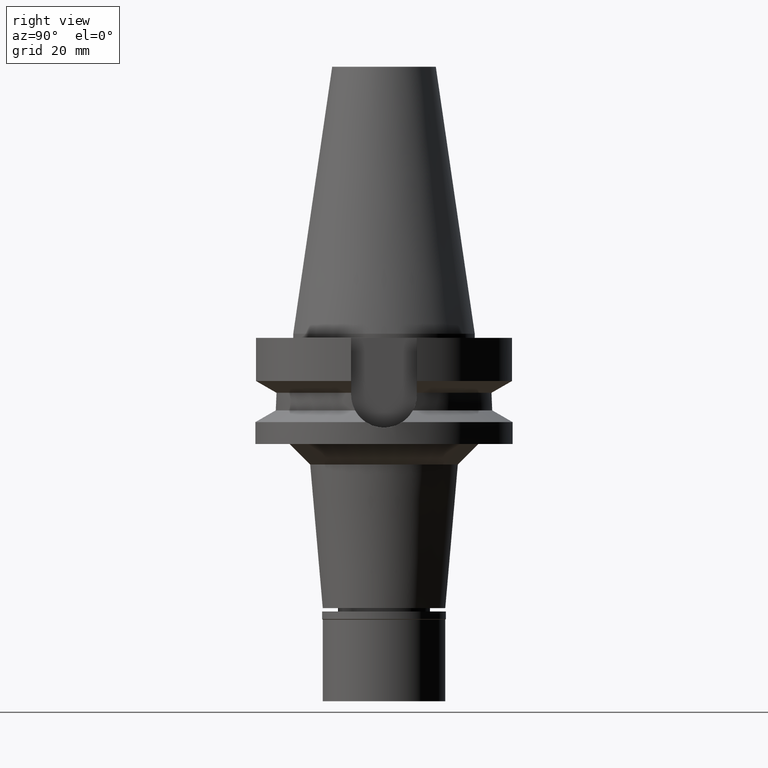
[diagram: clean part render]
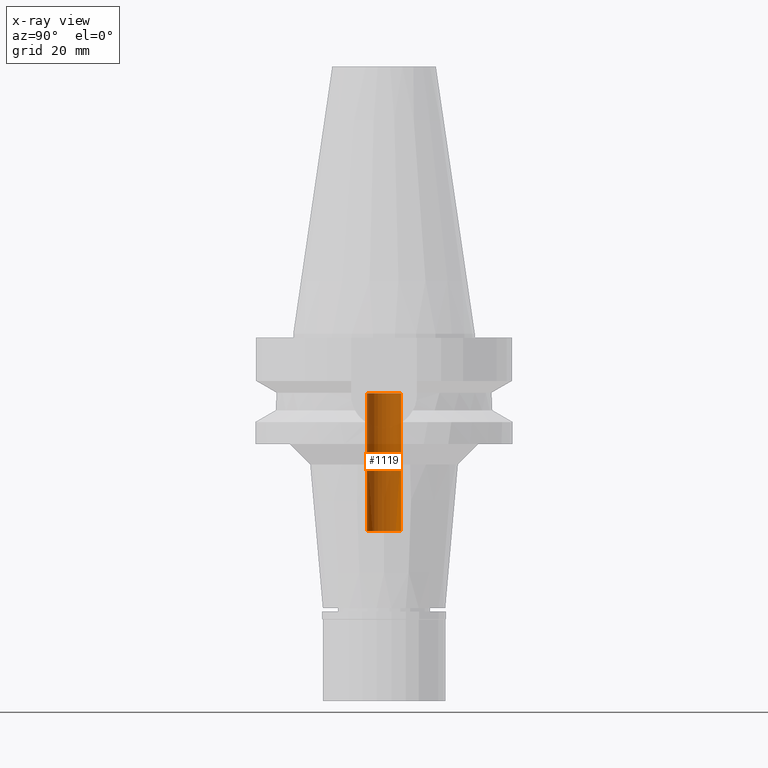
[diagram: x-ray — body ghosted, one internal face saturated and labeled with its STEP entity id]
A machine part, right view, then the same camera in x-ray: the body is ghosted and one INTERNAL B-rep face — a face not visible from any outside direction — is saturated and labeled: STEP entity #1119.
In plain terms, the highlighted cylindrical surface (edge-blend (fillet) strip) has radius 4.2 mm, axis along (0, 0, -1).
Its self-contained STEP definition (entity closure, byte-faithful):
#383 = ORIENTED_EDGE ( 'NONE', *, *, #2569, .F. ) ;
#512 = EDGE_LOOP ( 'NONE', ( #2521, #383, #529, #634 ) ) ;
#529 = ORIENTED_EDGE ( 'NONE', *, *, #1448, .T. ) ;
#634 = ORIENTED_EDGE ( 'NONE', *, *, #1196, .T. ) ;
#679 = VERTEX_POINT ( 'NONE', #2328 ) ;
#789 = LINE ( 'NONE', #1337, #1929 ) ;
#877 = CYLINDRICAL_SURFACE ( 'NONE', #2974, 4.200000000000000178 ) ;
#892 = CARTESIAN_POINT ( 'NONE',  ( 0.0000000000000000000, 4.200000000000000178, -48.30000000000000426 ) ) ;
#930 = CARTESIAN_POINT ( 'NONE',  ( 0.0000000000000000000, 2.116618295306000150E-14, 72.83499999999999375 ) ) ;
#1004 = VECTOR ( 'NONE', #2812, 1000.000000000000000 ) ;
#1119 = ADVANCED_FACE ( 'NONE', ( #2610 ), #877, .F. ) ;
#1172 = CARTESIAN_POINT ( 'NONE',  ( 0.0000000000000000000, -4.200000000000000178, -14.59999999999999964 ) ) ;
#1196 = EDGE_CURVE ( 'NONE', #679, #1720, #1617, .T. ) ;
#1207 = CIRCLE ( 'NONE', #2979, 4.200000000000000178 ) ;
#1337 = CARTESIAN_POINT ( 'NONE',  ( 0.0000000000000000000, -4.200000000000000178, -48.30000000000000426 ) ) ;
#1448 = EDGE_CURVE ( 'NONE', #1959, #679, #1207, .T. ) ;
#1450 = CARTESIAN_POINT ( 'NONE',  ( 0.0000000000000000000, -4.200000000000000178, -48.30000000000000426 ) ) ;
#1474 = DIRECTION ( 'NONE',  ( 0.0000000000000000000, 0.0000000000000000000, -1.000000000000000000 ) ) ;
#1479 = CIRCLE ( 'NONE', #2073, 4.200000000000000178 ) ;
#1617 = LINE ( 'NONE', #892, #1004 ) ;
#1720 = VERTEX_POINT ( 'NONE', #2848 ) ;
#1848 = DIRECTION ( 'NONE',  ( 0.0000000000000000000, 0.0000000000000000000, -1.000000000000000000 ) ) ;
#1929 = VECTOR ( 'NONE', #2511, 1000.000000000000000 ) ;
#1959 = VERTEX_POINT ( 'NONE', #1450 ) ;
#2073 = AXIS2_PLACEMENT_3D ( 'NONE', #3090, #3073, #3123 ) ;
#2302 = DIRECTION ( 'NONE',  ( 0.0000000000000000000, -1.000000000000000000, 0.0000000000000000000 ) ) ;
#2328 = CARTESIAN_POINT ( 'NONE',  ( 0.0000000000000000000, 4.200000000000000178, -48.30000000000000426 ) ) ;
#2430 = DIRECTION ( 'NONE',  ( 0.0000000000000000000, -1.000000000000000000, 0.0000000000000000000 ) ) ;
#2511 = DIRECTION ( 'NONE',  ( 0.0000000000000000000, 0.0000000000000000000, 1.000000000000000000 ) ) ;
#2521 = ORIENTED_EDGE ( 'NONE', *, *, #2709, .T. ) ;
#2569 = EDGE_CURVE ( 'NONE', #1959, #2699, #789, .T. ) ;
#2610 = FACE_OUTER_BOUND ( 'NONE', #512, .T. ) ;
#2699 = VERTEX_POINT ( 'NONE', #1172 ) ;
#2709 = EDGE_CURVE ( 'NONE', #1720, #2699, #1479, .T. ) ;
#2812 = DIRECTION ( 'NONE',  ( 0.0000000000000000000, 0.0000000000000000000, 1.000000000000000000 ) ) ;
#2848 = CARTESIAN_POINT ( 'NONE',  ( 0.0000000000000000000, 4.200000000000000178, -14.59999999999999964 ) ) ;
#2909 = CARTESIAN_POINT ( 'NONE',  ( 0.0000000000000000000, 2.116618295306000150E-14, -48.30000000000000426 ) ) ;
#2974 = AXIS2_PLACEMENT_3D ( 'NONE', #930, #1848, #2302 ) ;
#2979 = AXIS2_PLACEMENT_3D ( 'NONE', #2909, #1474, #2430 ) ;
#3073 = DIRECTION ( 'NONE',  ( 0.0000000000000000000, 0.0000000000000000000, 1.000000000000000000 ) ) ;
#3090 = CARTESIAN_POINT ( 'NONE',  ( 0.0000000000000000000, 2.116618295306000150E-14, -14.59999999999999964 ) ) ;
#3123 = DIRECTION ( 'NONE',  ( 0.0000000000000000000, 1.000000000000000000, 0.0000000000000000000 ) ) ;